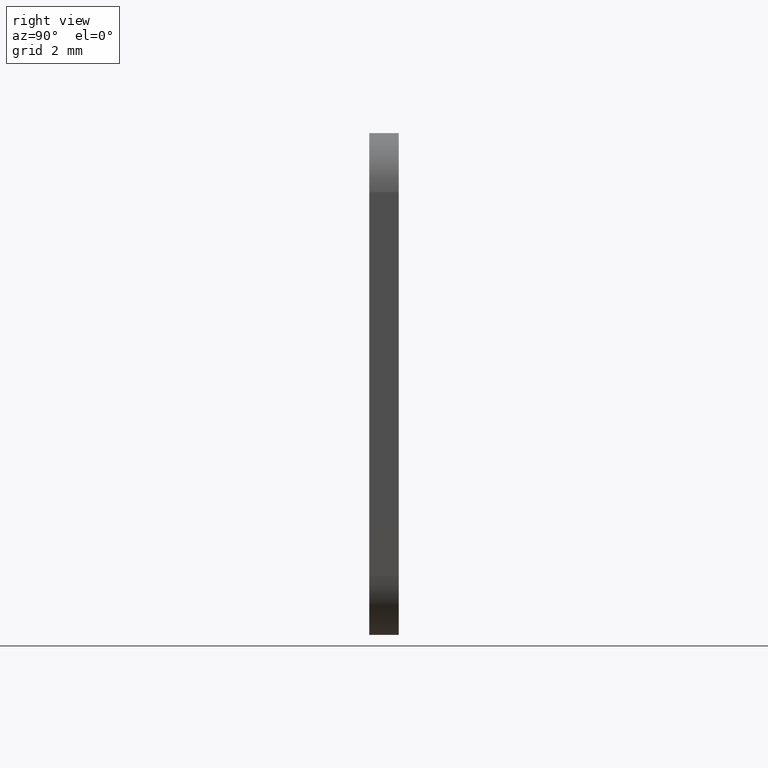
[diagram: clean part render]
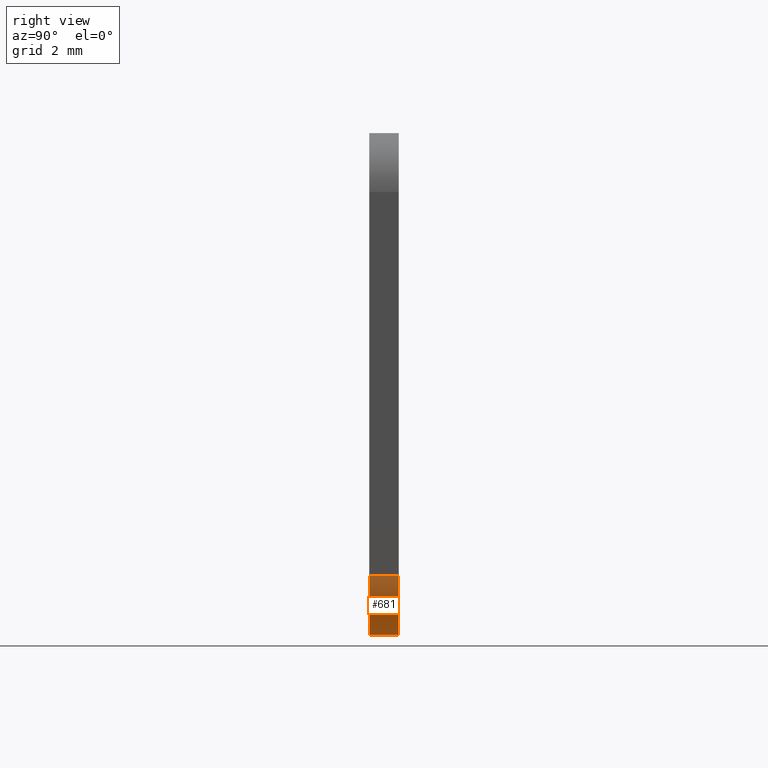
[diagram: same view with one face highlighted and labeled with its STEP entity id]
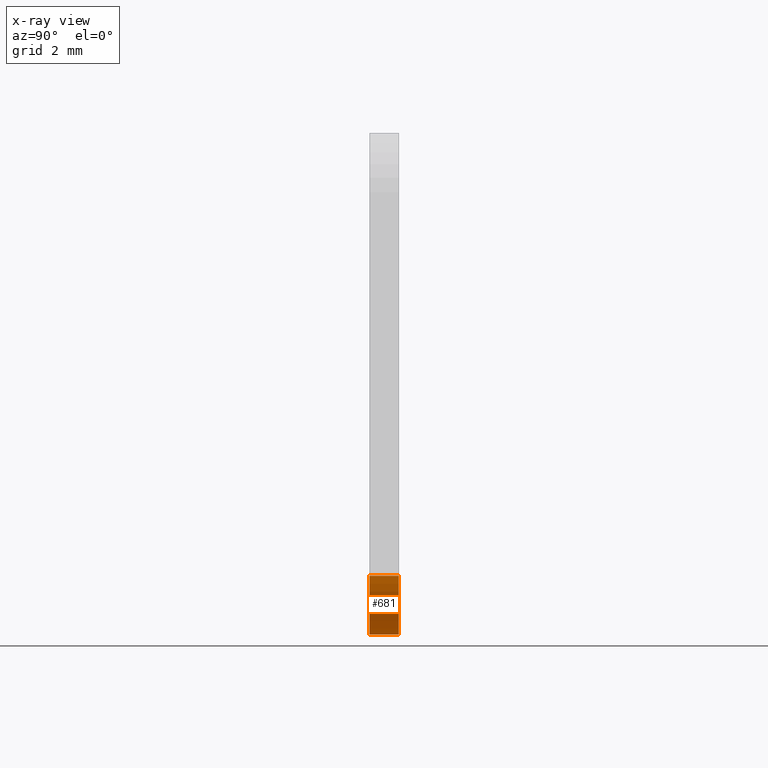
[diagram: x-ray of the same camera — body ghosted, the highlighted face saturated]
A machine part, right view. The second image highlights one B-rep face of the part: STEP entity #681.
The next image is the same camera in x-ray: the body ghosted, the highlighted face saturated — about 0% of this face is hidden behind the body in this view.
In plain terms, the highlighted face is a freeform B-spline surface patch.
Its self-contained STEP definition (entity closure, byte-faithful):
#422=CARTESIAN_POINT('',(7.0,0.0,-8.500000000000000));
#423=VERTEX_POINT('',#422);
#429=CARTESIAN_POINT('',(9.0,0.0,-6.500000000000000));
#430=VERTEX_POINT('',#429);
#431=CARTESIAN_POINT('',(7.0,0.0,-8.500000000000000));
#432=CARTESIAN_POINT('',(9.000000000000002,0.0,-8.500000000000002));
#433=CARTESIAN_POINT('',(9.000000000000002,0.0,-6.500000000000000));
#441=(BOUNDED_CURVE()B_SPLINE_CURVE(2,(#431,#432,#433),.UNSPECIFIED.,.F.,.U.)CURVE()GEOMETRIC_REPRESENTATION_ITEM()QUASI_UNIFORM_CURVE()RATIONAL_B_SPLINE_CURVE((1.0,0.707106781186548,1.0))REPRESENTATION_ITEM(''));
#442=EDGE_CURVE('',#423,#430,#441,.T.);
#532=CARTESIAN_POINT('',(9.0,1.0,-6.500000000000000));
#533=VERTEX_POINT('',#532);
#539=CARTESIAN_POINT('',(7.0,1.0,-8.500000000000000));
#540=VERTEX_POINT('',#539);
#541=CARTESIAN_POINT('',(7.0,1.0,-8.500000000000000));
#542=CARTESIAN_POINT('',(9.000000000000002,1.0,-8.500000000000002));
#543=CARTESIAN_POINT('',(9.000000000000002,1.0,-6.500000000000000));
#551=(BOUNDED_CURVE()B_SPLINE_CURVE(2,(#541,#542,#543),.UNSPECIFIED.,.F.,.U.)CURVE()GEOMETRIC_REPRESENTATION_ITEM()QUASI_UNIFORM_CURVE()RATIONAL_B_SPLINE_CURVE((1.0,0.707106781186548,1.0))REPRESENTATION_ITEM(''));
#552=EDGE_CURVE('',#540,#533,#551,.T.);
#647=CARTESIAN_POINT('',(9.0,1.0,-6.500000000000000));
#648=CARTESIAN_POINT('',(9.0,0.0,-6.500000000000000));
#649=QUASI_UNIFORM_CURVE('',1,(#647,#648),.UNSPECIFIED.,.F.,.U.);
#650=EDGE_CURVE('',#533,#430,#649,.T.);
#657=CARTESIAN_POINT('',(8.998096443163714,1.025000000000000,-6.412761225269327));
#658=CARTESIAN_POINT('',(8.998096443163714,-0.025625000000000,-6.412761225269327));
#659=CARTESIAN_POINT('',(9.095868981871970,1.025000000000000,-8.652120528918070));
#660=CARTESIAN_POINT('',(9.095868981871970,-0.025625000000000,-8.652120528918070));
#661=CARTESIAN_POINT('',(6.859883815912955,1.025000000000000,-8.495085826463834));
#662=CARTESIAN_POINT('',(6.859883815912955,-0.025625000000000,-8.495085826463834));
#670=(BOUNDED_SURFACE()B_SPLINE_SURFACE(1,2,((#657,#659,#661),(#658,#660,#662)),.UNSPECIFIED.,.F.,.F.,.U.)B_SPLINE_SURFACE_WITH_KNOTS((2,2),(3,3),(0.0,1.0),(0.0,3.583485079683967),.UNSPECIFIED.)GEOMETRIC_REPRESENTATION_ITEM()RATIONAL_B_SPLINE_SURFACE(((1.0,0.664513898535122,0.996233561259061),(1.0,0.664513898535122,0.996233561259061)))REPRESENTATION_ITEM('')SURFACE());
#671=ORIENTED_EDGE('',*,*,#442,.F.);
#672=CARTESIAN_POINT('',(7.0,1.0,-8.500000000000000));
#673=CARTESIAN_POINT('',(7.0,0.0,-8.500000000000000));
#674=QUASI_UNIFORM_CURVE('',1,(#672,#673),.UNSPECIFIED.,.F.,.U.);
#675=EDGE_CURVE('',#540,#423,#674,.T.);
#676=ORIENTED_EDGE('',*,*,#675,.F.);
#677=ORIENTED_EDGE('',*,*,#552,.T.);
#678=ORIENTED_EDGE('',*,*,#650,.T.);
#679=EDGE_LOOP('',(#671,#676,#677,#678));
#680=FACE_OUTER_BOUND('',#679,.T.);
#681=ADVANCED_FACE('',(#680),#670,.T.);